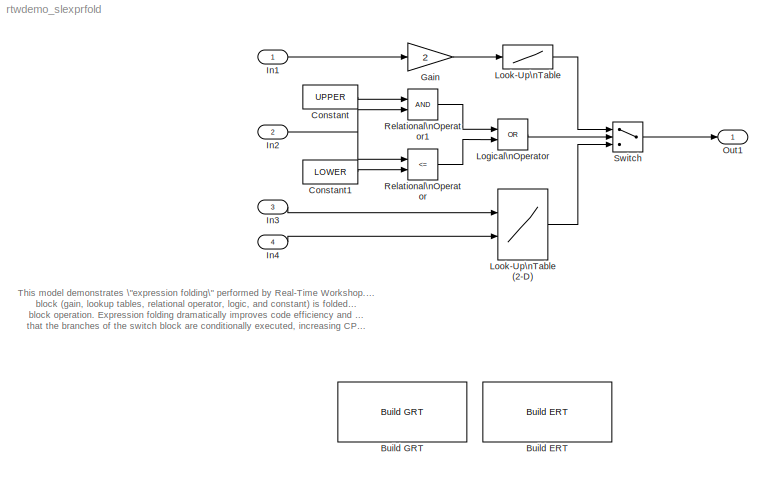
MODEL rtwdemo_slexprfold
KIND model
CONFIG PreLoadFcn = rtwdemo_exprfolding_data
BLOCK [Reference] Build ERT  REF=rtwdemowidgets/Build ERT
  Ports = []
  ShowPortLabels = on
  SourceBlock = rtwdemowidgets/Build ERT
  attrib_overrides = {}
BLOCK [Reference] Build GRT  REF=rtwdemowidgets/Build GRT
  Ports = []
  ShowPortLabels = on
  SourceBlock = rtwdemowidgets/Build GRT
  attrib_overrides = {}
BLOCK [Constant] Constant
  Value = UPPER
BLOCK [Constant] Constant1
  Value = LOWER
BLOCK [Gain] Gain
  Gain = 2
BLOCK [Inport] In1
  IconDisplay = Port number
  LatchInput = off
  Port = 1
  PortDimensions = 1
BLOCK [Inport] In2
  IconDisplay = Port number
  LatchInput = off
  Port = 2
  PortDimensions = 1
BLOCK [Inport] In3
  IconDisplay = Port number
  LatchInput = off
  Port = 3
  PortDimensions = 1
BLOCK [Inport] In4
  IconDisplay = Port number
  LatchInput = off
  Port = 4
  PortDimensions = 1
BLOCK [Logic] Logical\nOperator
  Operator = OR
  Ports = [2, 1]
BLOCK [Lookup] Look-Up\nTable
  DialogController = Simulink.DDGSource
  InputValues = T1Break
  OutputValues = T1Data
BLOCK [Lookup2D] Look-Up\nTable (2-D)
  ColumnIndex = T2Break
  DialogController = Simulink.DDGSource
  OutScaling = 2^-10
  OutputValues = T2Data
  RowIndex = T2Break
  SaturateOnIntegerOverflow = off
BLOCK [Outport] Out1
  BusOutputAsStruct = off
  IconDisplay = Port number
BLOCK [RelationalOperator] Relational\nOperator
  Operator = <=
BLOCK [RelationalOperator] Relational\nOperator1
BLOCK [Switch] Switch
  Threshold = .5
ANNOTATION (root): This model demonstrates \"expression folding\" performed by Real-Time Workshop. In this model, each\nblock (gain, lookup tables, relational operator, logic, and constant) is folded into the switch\nblock operation. Expression folding dramatically improves code efficiency and readability. Note\nthat the branches of the switch block are conditionally executed, increasing CPU throughput.
LINE Constant1:1 -> Relational\nOperator:2
LINE Constant:1 -> Relational\nOperator1:1
LINE Gain:1 -> Look-Up\nTable:1
LINE In1:1 -> Gain:1
NET In2:1 -> Relational\nOperator1:2, Relational\nOperator:1
LINE In3:1 -> Look-Up\nTable (2-D):1
LINE In4:1 -> Look-Up\nTable (2-D):2
LINE Logical\nOperator:1 -> Switch:2
LINE Look-Up\nTable (2-D):1 -> Switch:3
LINE Look-Up\nTable:1 -> Switch:1
LINE Relational\nOperator1:1 -> Logical\nOperator:1
LINE Relational\nOperator:1 -> Logical\nOperator:2
LINE Switch:1 -> Out1:1
note: NET lines group one-source signal fan-out (src -> all destinations, sorted); 1:1 wires keep LINE
